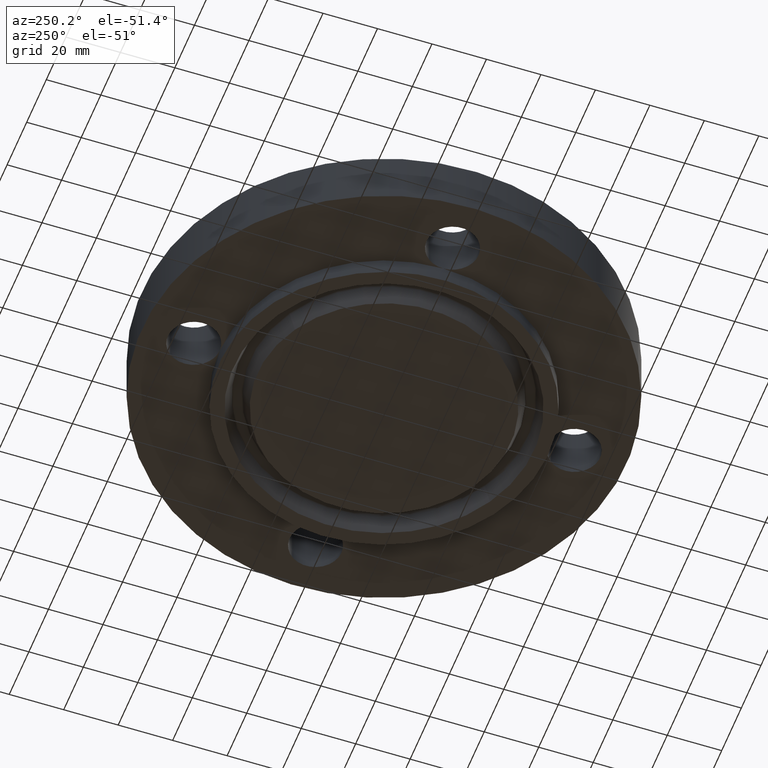
[diagram: clean part render]
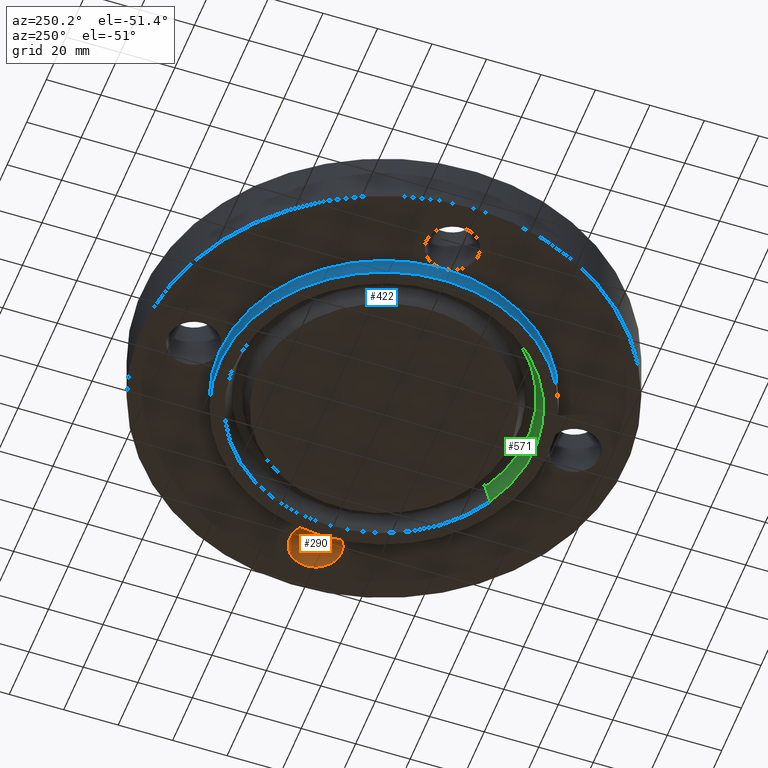
[diagram: same view with three faces highlighted in distinct colors, each labeled with its STEP entity id]
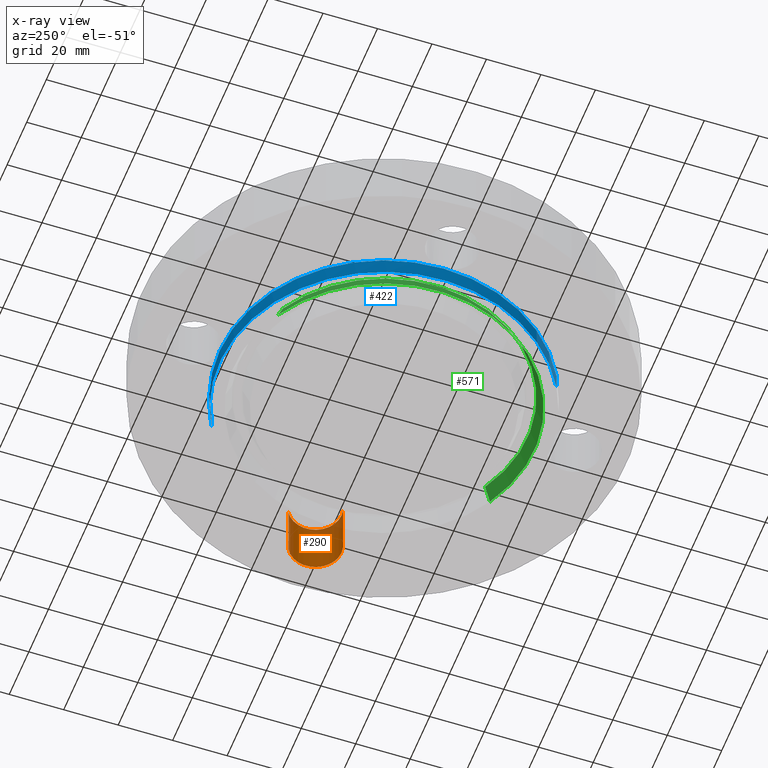
[diagram: x-ray of the same camera — body ghosted, the three highlighted faces saturated]
A machine part, auxiliary view with three faces highlighted in distinct colors.
The next image is the same camera in x-ray (body ghosted, the three faces saturated) — at least one of them is partly hidden behind the body in this view.
Their STEP definitions:

[orange] entity #290 — the highlighted cylindrical surface (edge-blend (fillet) strip) has radius 9.525 mm, axis along (0, -0, -1).
#229=AXIS2_PLACEMENT_3D('Cylinder Axis2P3D',#226,#227,#228) ;
#276=AXIS2_PLACEMENT_3D('Circle Axis2P3D',#274,#275,$) ;
#281=AXIS2_PLACEMENT_3D('Circle Axis2P3D',#279,#280,$) ;
#226=CARTESIAN_POINT('Axis2P3D Location',(2.75000000001,1.68388934883E-016,0.806062992129)) ;
#231=CARTESIAN_POINT('Line Origine',(2.57021542303,-0.32909346071,0.405000000002)) ;
#235=CARTESIAN_POINT('Vertex',(2.57021542303,-0.32909346071,0.)) ;
#237=CARTESIAN_POINT('Vertex',(2.57021542303,-0.32909346071,0.810000000003)) ;
#251=CARTESIAN_POINT('Vertex',(2.92978457699,0.32909346071,0.)) ;
#254=CARTESIAN_POINT('Line Origine',(2.92978457699,0.32909346071,0.405000000002)) ;
#258=CARTESIAN_POINT('Vertex',(2.92978457699,0.32909346071,0.810000000003)) ;
#274=CARTESIAN_POINT('Axis2P3D Location',(2.75000000001,1.68388934883E-016,0.)) ;
#279=CARTESIAN_POINT('Axis2P3D Location',(2.75000000001,1.68388934883E-016,0.810000000003)) ;
#227=DIRECTION('Axis2P3D Direction',(0.,-0.,-0.0393700787402)) ;
#228=DIRECTION('Axis2P3D XDirection',(0.0188750212049,0.0345504945626,-0.)) ;
#232=DIRECTION('Vector Direction',(0.,0.,-0.0393700787402)) ;
#255=DIRECTION('Vector Direction',(0.,0.,-0.0393700787402)) ;
#275=DIRECTION('Axis2P3D Direction',(0.,-0.,-0.0393700787402)) ;
#280=DIRECTION('Axis2P3D Direction',(0.,-0.,-0.0393700787402)) ;
#233=VECTOR('Line Direction',#232,0.0393700787402) ;
#256=VECTOR('Line Direction',#255,0.0393700787402) ;
#285=ORIENTED_EDGE('',*,*,#260,.F.) ;
#286=ORIENTED_EDGE('',*,*,#278,.T.) ;
#287=ORIENTED_EDGE('',*,*,#239,.T.) ;
#288=ORIENTED_EDGE('',*,*,#283,.F.) ;
#290=ADVANCED_FACE('PartBody',(#289),#230,.F.) ;
#277=CIRCLE('generated circle',#276,0.375000000001) ;
#282=CIRCLE('generated circle',#281,0.375000000001) ;
#230=CYLINDRICAL_SURFACE('generated cylinder',#229,0.375000000001) ;
#239=EDGE_CURVE('',#236,#238,#234,.F.) ;
#260=EDGE_CURVE('',#252,#259,#257,.F.) ;
#278=EDGE_CURVE('',#252,#236,#277,.T.) ;
#283=EDGE_CURVE('',#259,#238,#282,.T.) ;
#284=EDGE_LOOP('',(#285,#286,#287,#288)) ;
#289=FACE_OUTER_BOUND('',#284,.T.) ;
#234=LINE('Line',#231,#233) ;
#257=LINE('Line',#254,#256) ;
#236=VERTEX_POINT('',#235) ;
#238=VERTEX_POINT('',#237) ;
#252=VERTEX_POINT('',#251) ;
#259=VERTEX_POINT('',#258) ;

[blue] entity #422 — the highlighted cylindrical surface (partial cylindrical patch) has radius 60.325 mm, axis along (0, 0, -1).
#70=AXIS2_PLACEMENT_3D('Circle Axis2P3D',#68,#69,$) ;
#328=AXIS2_PLACEMENT_3D('Circle Axis2P3D',#326,#327,$) ;
#354=AXIS2_PLACEMENT_3D('Circle Axis2P3D',#352,#353,$) ;
#359=AXIS2_PLACEMENT_3D('Circle Axis2P3D',#357,#358,$) ;
#393=AXIS2_PLACEMENT_3D('Cylinder Axis2P3D',#390,#391,#392) ;
#63=CARTESIAN_POINT('Vertex',(1.13863565419,2.0842585845,-0.250000000001)) ;
#65=CARTESIAN_POINT('Vertex',(-1.13863565419,-2.0842585845,-0.250000000001)) ;
#68=CARTESIAN_POINT('Axis2P3D Location',(0.,0.,-0.250000000001)) ;
#179=CARTESIAN_POINT('Vertex',(-2.37500000001,-2.79741234551E-016,0.)) ;
#323=CARTESIAN_POINT('Vertex',(1.13863565419,2.0842585845,2.44773580232E-016)) ;
#326=CARTESIAN_POINT('Axis2P3D Location',(0.,0.,0.)) ;
#330=CARTESIAN_POINT('Vertex',(-9.45568263898E-015,2.37500000001,2.44773580232E-016)) ;
#352=CARTESIAN_POINT('Axis2P3D Location',(0.,0.,0.)) ;
#357=CARTESIAN_POINT('Axis2P3D Location',(0.,0.,0.)) ;
#361=CARTESIAN_POINT('Vertex',(-1.13863565419,-2.0842585845,2.44773580232E-016)) ;
#390=CARTESIAN_POINT('Axis2P3D Location',(0.,0.,0.280000000001)) ;
#395=CARTESIAN_POINT('Line Origine',(1.13863565419,2.0842585845,-0.125)) ;
#400=CARTESIAN_POINT('Line Origine',(-1.13863565419,-2.0842585845,-0.125)) ;
#69=DIRECTION('Axis2P3D Direction',(0.,0.,-0.0393700787402)) ;
#327=DIRECTION('Axis2P3D Direction',(0.,0.,-0.0393700787402)) ;
#353=DIRECTION('Axis2P3D Direction',(0.,0.,-0.0393700787402)) ;
#358=DIRECTION('Axis2P3D Direction',(0.,0.,-0.0393700787402)) ;
#391=DIRECTION('Axis2P3D Direction',(0.,0.,-0.0393700787402)) ;
#392=DIRECTION('Axis2P3D XDirection',(-0.0188750212049,-0.0345504945626,0.)) ;
#396=DIRECTION('Vector Direction',(0.,0.,-0.0393700787402)) ;
#401=DIRECTION('Vector Direction',(0.,0.,-0.0393700787402)) ;
#397=VECTOR('Line Direction',#396,0.0393700787402) ;
#402=VECTOR('Line Direction',#401,0.0393700787402) ;
#415=ORIENTED_EDGE('',*,*,#72,.F.) ;
#416=ORIENTED_EDGE('',*,*,#404,.T.) ;
#417=ORIENTED_EDGE('',*,*,#363,.T.) ;
#418=ORIENTED_EDGE('',*,*,#356,.T.) ;
#419=ORIENTED_EDGE('',*,*,#332,.T.) ;
#420=ORIENTED_EDGE('',*,*,#399,.F.) ;
#422=ADVANCED_FACE('PartBody',(#421),#394,.T.) ;
#71=CIRCLE('generated circle',#70,2.37500000001) ;
#329=CIRCLE('generated circle',#328,2.37500000001) ;
#355=CIRCLE('generated circle',#354,2.37500000001) ;
#360=CIRCLE('generated circle',#359,2.37500000001) ;
#394=CYLINDRICAL_SURFACE('generated cylinder',#393,2.37500000001) ;
#72=EDGE_CURVE('',#66,#64,#71,.T.) ;
#332=EDGE_CURVE('',#331,#324,#329,.T.) ;
#356=EDGE_CURVE('',#180,#331,#355,.T.) ;
#363=EDGE_CURVE('',#362,#180,#360,.T.) ;
#399=EDGE_CURVE('',#64,#324,#398,.F.) ;
#404=EDGE_CURVE('',#66,#362,#403,.F.) ;
#414=EDGE_LOOP('',(#415,#416,#417,#418,#419,#420)) ;
#421=FACE_OUTER_BOUND('',#414,.T.) ;
#398=LINE('Line',#395,#397) ;
#403=LINE('Line',#400,#402) ;
#64=VERTEX_POINT('',#63) ;
#66=VERTEX_POINT('',#65) ;
#180=VERTEX_POINT('',#179) ;
#324=VERTEX_POINT('',#323) ;
#331=VERTEX_POINT('',#330) ;
#362=VERTEX_POINT('',#361) ;

[green] entity #571 — the highlighted conical surface has half-angle 23 deg.
#79=AXIS2_PLACEMENT_3D('Circle Axis2P3D',#77,#78,$) ;
#517=AXIS2_PLACEMENT_3D('Circle Axis2P3D',#515,#516,$) ;
#553=AXIS2_PLACEMENT_3D('Cone Axis2P3D',#550,#551,#552) ;
#77=CARTESIAN_POINT('Axis2P3D Location',(-1.39870617276E-016,-5.59482469102E-016,-0.250000000001)) ;
#81=CARTESIAN_POINT('Vertex',(1.04125234166,-1.90599962661,-0.250000000001)) ;
#83=CARTESIAN_POINT('Vertex',(-1.04125234166,1.90599962661,-0.250000000001)) ;
#515=CARTESIAN_POINT('Axis2P3D Location',(0.,0.,-0.0190396522348)) ;
#519=CARTESIAN_POINT('Vertex',(-0.994250971485,1.8199641956,-0.0190396522348)) ;
#521=CARTESIAN_POINT('Vertex',(0.994250971485,-1.8199641956,-0.0190396522348)) ;
#550=CARTESIAN_POINT('Axis2P3D Location',(0.,0.,-0.0190396522348)) ;
#555=CARTESIAN_POINT('Line Origine',(-1.01775165657,1.86298191111,-0.134519826118)) ;
#560=CARTESIAN_POINT('Line Origine',(1.01775165657,-1.86298191111,-0.134519826118)) ;
#78=DIRECTION('Axis2P3D Direction',(0.,0.,-0.0393700787402)) ;
#516=DIRECTION('Axis2P3D Direction',(0.,0.,0.0393700787402)) ;
#551=DIRECTION('Axis2P3D Direction',(-0.,-0.,-0.0393700787402)) ;
#552=DIRECTION('Axis2P3D XDirection',(-0.0188750212049,0.0345504945626,0.)) ;
#556=DIRECTION('Vector Direction',(-0.00737505833565,0.0134999537303,-0.0362403485611)) ;
#561=DIRECTION('Vector Direction',(0.00737505833565,-0.0134999537303,-0.0362403485611)) ;
#557=VECTOR('Line Direction',#556,0.0393700787402) ;
#562=VECTOR('Line Direction',#561,0.0393700787402) ;
#566=ORIENTED_EDGE('',*,*,#85,.T.) ;
#567=ORIENTED_EDGE('',*,*,#559,.T.) ;
#568=ORIENTED_EDGE('',*,*,#523,.T.) ;
#569=ORIENTED_EDGE('',*,*,#564,.F.) ;
#571=ADVANCED_FACE('PartBody',(#570),#554,.F.) ;
#80=CIRCLE('generated circle',#79,2.17187500001) ;
#518=CIRCLE('generated circle',#517,2.07383814884) ;
#554=CONICAL_SURFACE('Cone',#553,2.07383814884,0.401425727959) ;
#85=EDGE_CURVE('',#82,#84,#80,.T.) ;
#523=EDGE_CURVE('',#520,#522,#518,.T.) ;
#559=EDGE_CURVE('',#84,#520,#558,.F.) ;
#564=EDGE_CURVE('',#82,#522,#563,.F.) ;
#565=EDGE_LOOP('',(#566,#567,#568,#569)) ;
#570=FACE_OUTER_BOUND('',#565,.T.) ;
#558=LINE('Line',#555,#557) ;
#563=LINE('Line',#560,#562) ;
#82=VERTEX_POINT('',#81) ;
#84=VERTEX_POINT('',#83) ;
#520=VERTEX_POINT('',#519) ;
#522=VERTEX_POINT('',#521) ;